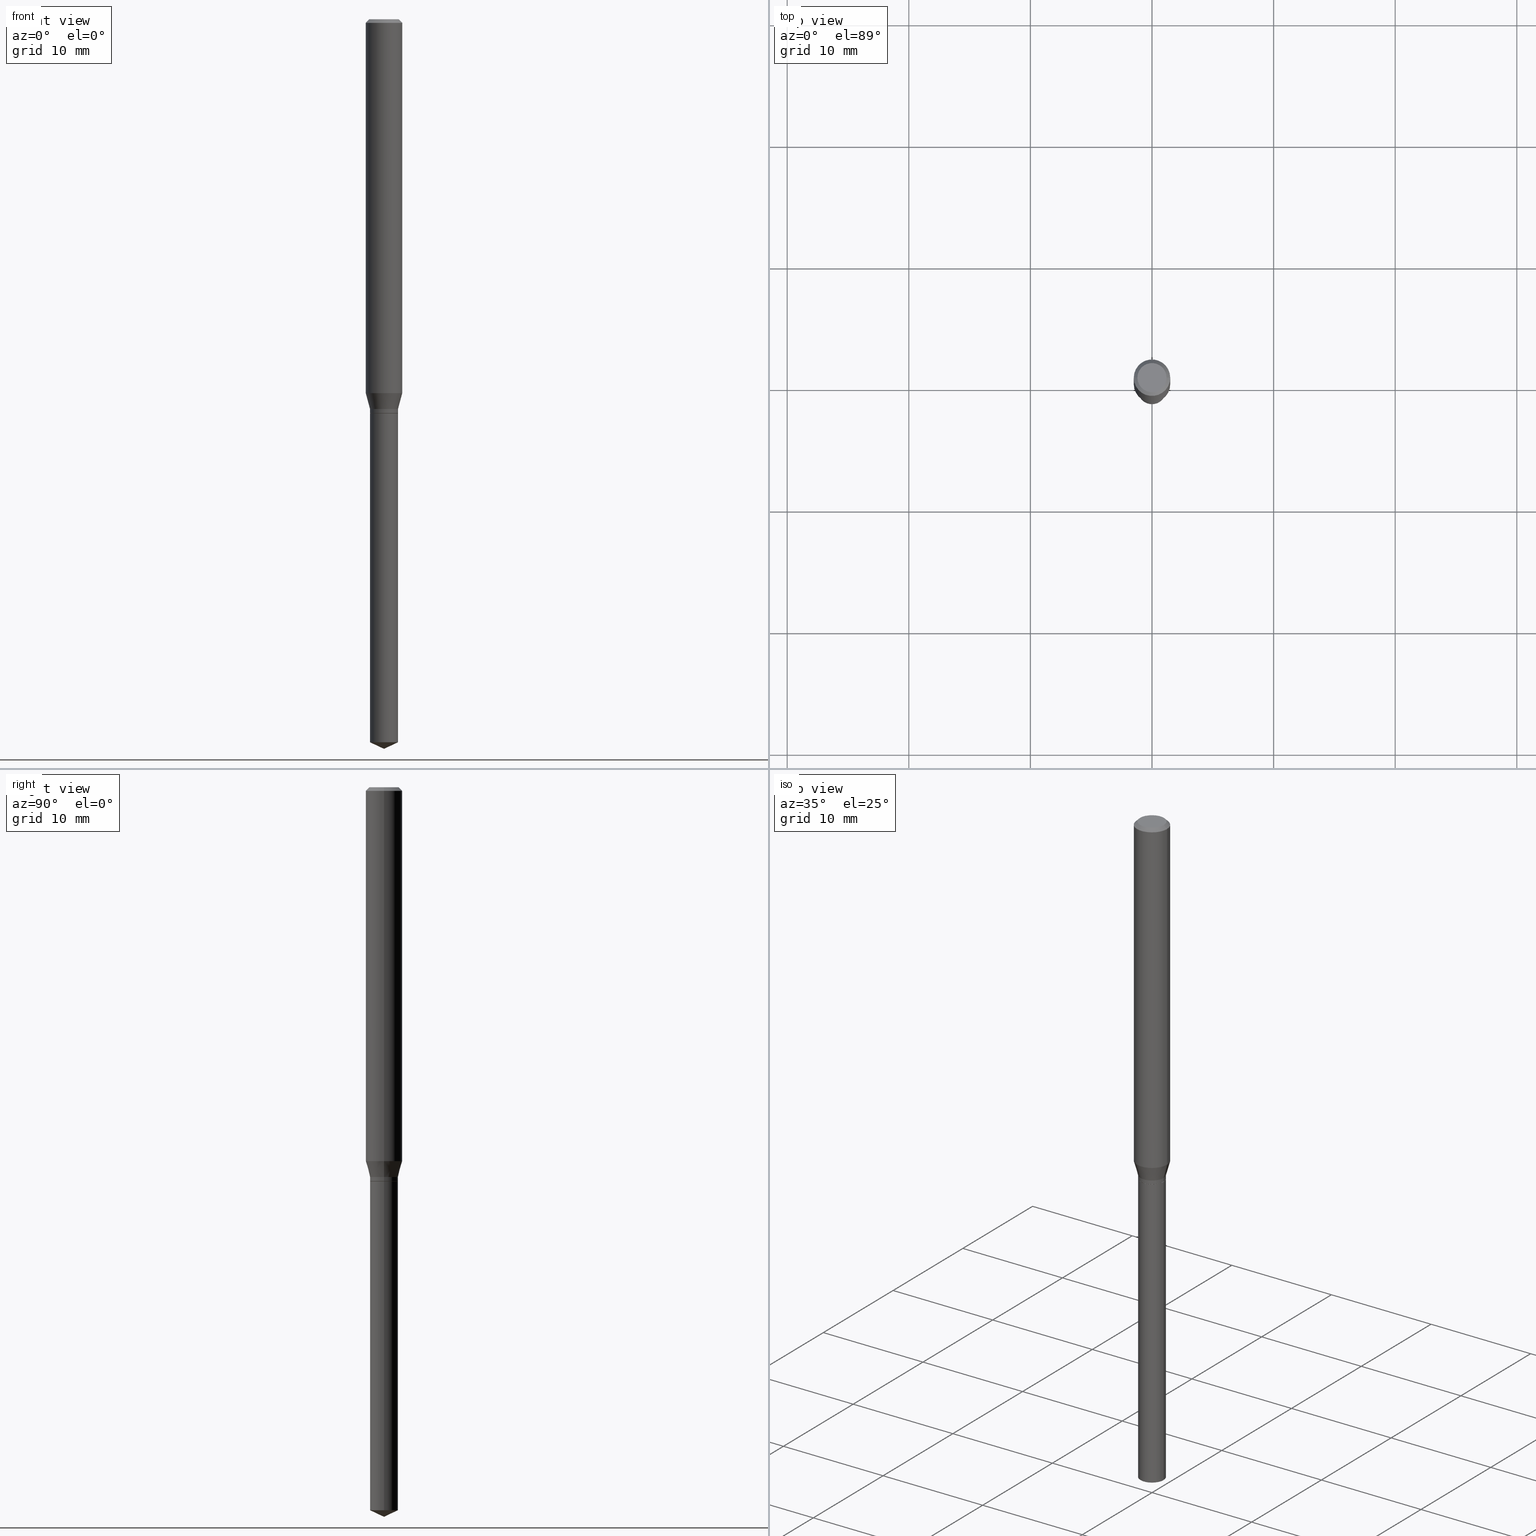
[diagram: canonical four-view strip — front | top / right | iso, engineering-drawing reading convention]
A machine part, canonical four-view strip (front | top / right | iso — engineering-drawing reading convention). The complete STEP part file that produces these views, byte-faithful:
ISO-10303-21;
HEADER;
FILE_DESCRIPTION (( 'STEP AP203' ),
    '1' );
FILE_NAME ('07637.STEP',
    '2024-04-24T00:10:10',
    ( '' ),
    ( '' ),
    'SwSTEP 2.0',
    'SolidWorks 2023',
    '' );
FILE_SCHEMA (( 'CONFIG_CONTROL_DESIGN' ));
ENDSEC;

DATA;
#1 = EDGE_CURVE ( 'NONE', #240, #176, #251, .T. ) ;
#2 = CARTESIAN_POINT ( 'NONE',  ( 0.04530000000000002774, -4.768316064458084174E-15, -1.275100000000000344 ) ) ;
#3 = EDGE_LOOP ( 'NONE', ( #279, #432 ) ) ;
#4 = AXIS2_PLACEMENT_3D ( 'NONE', #156, #276, #345 ) ;
#5 = AXIS2_PLACEMENT_3D ( 'NONE', #343, #90, #234 ) ;
#6 = FACE_OUTER_BOUND ( 'NONE', #393, .T. ) ;
#7 = EDGE_CURVE ( 'NONE', #421, #142, #77, .T. ) ;
#8 = CARTESIAN_POINT ( 'NONE',  ( 3.086181633405641816E-29, -4.406249449620048557E-15, -1.261999999999999789 ) ) ;
#9 = ORIENTED_EDGE ( 'NONE', *, *, #326, .F. ) ;
#10 = DIRECTION ( 'NONE',  ( -2.445468806185136597E-29, 3.491481338843145583E-15, 1.000000000000000000 ) ) ;
#11 = ORIENTED_EDGE ( 'NONE', *, *, #94, .T. ) ;
#12 = DIRECTION ( 'NONE',  ( 1.000000000000000000, -6.982962677686268288E-15, 0.000000000000000000 ) ) ;
#13 = EDGE_LOOP ( 'NONE', ( #197, #313, #45, #49 ) ) ;
#14 = CARTESIAN_POINT ( 'NONE',  ( 3.119440009169759514E-29, -4.453733595828316609E-15, -1.275599999999999845 ) ) ;
#15 = DIRECTION ( 'NONE',  ( -2.445468806185136597E-29, 3.491481338843145583E-15, 1.000000000000000000 ) ) ;
#16 = CARTESIAN_POINT ( 'NONE',  ( 3.086181633405641816E-29, -4.406249449620048557E-15, -1.261999999999999789 ) ) ;
#17 = ORIENTED_EDGE ( 'NONE', *, *, #68, .T. ) ;
#18 = AXIS2_PLACEMENT_3D ( 'NONE', #28, #450, #115 ) ;
#19 = AXIS2_PLACEMENT_3D ( 'NONE', #339, #92, #242 ) ;
#20 = DIRECTION ( 'NONE',  ( -2.445468806185136597E-29, 3.491481338843145583E-15, 1.000000000000000000 ) ) ;
#21 = ORIENTED_EDGE ( 'NONE', *, *, #332, .T. ) ;
#22 = CC_DESIGN_PERSON_AND_ORGANIZATION_ASSIGNMENT ( #414, #442, ( #307 ) ) ;
#23 = ORIENTED_EDGE ( 'NONE', *, *, #179, .F. ) ;
#24 = DIRECTION ( 'NONE',  ( -2.445468806185136597E-29, 3.491481338843145583E-15, 1.000000000000000000 ) ) ;
#25 = VECTOR ( 'NONE', #225, 39.37007874015748854 ) ;
#26 = LINE ( 'NONE', #265, #375 ) ;
#27 = LOCAL_TIME ( 20, 10, 10.00000000000000000, #153 ) ;
#28 = CARTESIAN_POINT ( 'NONE',  ( 3.118217274766668394E-29, -4.451987855158895895E-15, -1.275100000000000344 ) ) ;
#29 = DATE_TIME_ROLE ( 'creation_date' ) ;
#30 = ADVANCED_FACE ( 'NONE', ( #54 ), #205, .T. ) ;
#31 = DIRECTION ( 'NONE',  ( -2.445468806185136597E-29, 3.491481338843145583E-15, 1.000000000000000000 ) ) ;
#32 = APPLICATION_PROTOCOL_DEFINITION ( 'international standard', 'config_control_design', 1994, #80 ) ;
#33 = DIRECTION ( 'NONE',  ( -2.445468806185136877E-29, 3.491481338843145188E-15, 1.000000000000000000 ) ) ;
#34 = AXIS2_PLACEMENT_3D ( 'NONE', #8, #10, #201 ) ;
#35 = DIRECTION ( 'NONE',  ( -2.445468806185136597E-29, 3.491481338843145583E-15, 1.000000000000000000 ) ) ;
#36 = ADVANCED_FACE ( 'NONE', ( #247 ), #180, .T. ) ;
#37 = CALENDAR_DATE ( 2024, 23, 4 ) ;
#38 = LINE ( 'NONE', #157, #439 ) ;
#39 = DIRECTION ( 'NONE',  ( -1.000000000000000000, 6.982962677686265922E-15, -4.876176775795935793E-29 ) ) ;
#40 = EDGE_LOOP ( 'NONE', ( #428, #162, #315, #169 ) ) ;
#41 = AXIS2_PLACEMENT_3D ( 'NONE', #355, #15, #104 ) ;
#42 = CIRCLE ( 'NONE', #423, 0.04530000000000002081 ) ;
#43 = ADVANCED_FACE ( 'NONE', ( #100 ), #64, .T. ) ;
#44 = DIRECTION ( 'NONE',  ( 1.000000000000000000, -6.982962677686271444E-15, 0.000000000000000000 ) ) ;
#45 = ORIENTED_EDGE ( 'NONE', *, *, #208, .T. ) ;
#46 = PLANE ( 'NONE',  #342 ) ;
#47 = VERTEX_POINT ( 'NONE', #58 ) ;
#48 = CYLINDRICAL_SURFACE ( 'NONE', #194, 0.04529999999999999999 ) ;
#49 = ORIENTED_EDGE ( 'NONE', *, *, #337, .F. ) ;
#50 = AXIS2_PLACEMENT_3D ( 'NONE', #130, #383, #238 ) ;
#51 = CC_DESIGN_APPROVAL ( #75, ( #98 ) ) ;
#52 = FACE_OUTER_BOUND ( 'NONE', #465, .T. ) ;
#53 = CC_DESIGN_PERSON_AND_ORGANIZATION_ASSIGNMENT ( #334, #484, ( #319 ) ) ;
#54 = FACE_OUTER_BOUND ( 'NONE', #13, .T. ) ;
#55 = PLANE ( 'NONE',  #112 ) ;
#56 = ORIENTED_EDGE ( 'NONE', *, *, #160, .T. ) ;
#57 = DIRECTION ( 'NONE',  ( -0.7071067811865453523, 2.468850131082234184E-15, -0.7071067811865496822 ) ) ;
#58 = CARTESIAN_POINT ( 'NONE',  ( 0.04530000000000002081, -4.722577658919236837E-15, -1.261999999999999789 ) ) ;
#59 = EDGE_CURVE ( 'NONE', #142, #257, #210, .T. ) ;
#60 = VERTEX_POINT ( 'NONE', #66 ) ;
#61 = ORIENTED_EDGE ( 'NONE', *, *, #59, .F. ) ;
#62 = CARTESIAN_POINT ( 'NONE',  ( 2.888098660104663766E-31, -4.123439461173779647E-17, -0.01181000000000007044 ) ) ;
#63 = APPROVAL_DATE_TIME ( #404, #75 ) ;
#64 = CONICAL_SURFACE ( 'NONE', #341, 84.42940631927322670, 1.134464013796310899 ) ;
#65 = AXIS2_PLACEMENT_3D ( 'NONE', #178, #430, #468 ) ;
#66 = CARTESIAN_POINT ( 'NONE',  ( 5.776686413970529753E-29, -8.247577218615279626E-15, -2.362200000000000077 ) ) ;
#67 = LOCAL_TIME ( 20, 10, 10.00000000000000000, #331 ) ;
#68 = EDGE_CURVE ( 'NONE', #142, #421, #290, .T. ) ;
#69 =( NAMED_UNIT ( * ) PLANE_ANGLE_UNIT ( ) SI_UNIT ( $, .RADIAN. ) );
#70 = MANIFOLD_SOLID_BREP ( 'Body-Move/Copy2[2]', #275 ) ;
#71 = DIRECTION ( 'NONE',  ( 1.000000000000000000, -6.982962677686266711E-15, 4.876185090822587894E-29 ) ) ;
#72 = COORDINATED_UNIVERSAL_TIME_OFFSET ( 5, 0, .BEHIND. ) ;
#73 = DIRECTION ( 'NONE',  ( 0.7071067811865453523, -7.319954787623248157E-15, -0.7071067811865496822 ) ) ;
#74 = PERSON_AND_ORGANIZATION_ROLE ( 'design_owner' ) ;
#75 = APPROVAL ( #259, 'UNSPECIFIED' ) ;
#76 = CARTESIAN_POINT ( 'NONE',  ( 2.888098660104663766E-31, -4.123439461173779647E-17, -0.01181000000000007044 ) ) ;
#77 = CIRCLE ( 'NONE', #349, 0.04529999999999999999 ) ;
#78 = CARTESIAN_POINT ( 'NONE',  ( 0.000000000000000000, 0.000000000000000000, 0.000000000000000000 ) ) ;
#79 = CARTESIAN_POINT ( 'NONE',  ( 3.086181633405641816E-29, -4.406249449620048557E-15, -1.261999999999999789 ) ) ;
#80 = APPLICATION_CONTEXT ( 'configuration controlled 3d designs of mechanical parts and assemblies' ) ;
#81 = EDGE_LOOP ( 'NONE', ( #213, #389, #477, #475 ) ) ;
#82 = DIRECTION ( 'NONE',  ( -2.445468806185136877E-29, 3.491481338843145188E-15, 1.000000000000000000 ) ) ;
#83 = ADVANCED_FACE ( 'NONE', ( #445 ), #111, .T. ) ;
#84 = EDGE_LOOP ( 'NONE', ( #459, #11, #282, #177 ) ) ;
#85 = CARTESIAN_POINT ( 'NONE',  ( 0.05905000000000007465, -4.123439461173745750E-16, 2.879382386107504074E-30 ) ) ;
#86 = ORIENTED_EDGE ( 'NONE', *, *, #132, .T. ) ;
#87 = AXIS2_PLACEMENT_3D ( 'NONE', #76, #409, #483 ) ;
#88 = CIRCLE ( 'NONE', #431, 0.04529999999999999999 ) ;
#89 = DESIGN_CONTEXT ( 'detailed design', #80, 'design' ) ;
#90 = DIRECTION ( 'NONE',  ( -2.445468806185136597E-29, 3.491481338843145583E-15, 1.000000000000000000 ) ) ;
#91 = EDGE_LOOP ( 'NONE', ( #135, #364, #202, #236 ) ) ;
#92 = DIRECTION ( 'NONE',  ( -2.445468806185136597E-29, 3.491481338843145583E-15, 1.000000000000000000 ) ) ;
#93 = ORIENTED_EDGE ( 'NONE', *, *, #440, .F. ) ;
#94 = EDGE_CURVE ( 'NONE', #140, #287, #148, .T. ) ;
#95 = CARTESIAN_POINT ( 'NONE',  ( -0.04530000000000000693, -7.851948226072618556E-15, -2.341076263085578368 ) ) ;
#96 = CARTESIAN_POINT ( 'NONE',  ( 5.725028974276250871E-29, -8.173824085371943200E-15, -2.341076263085578368 ) ) ;
#97 = AXIS2_PLACEMENT_3D ( 'NONE', #293, #443, #109 ) ;
#98 = SECURITY_CLASSIFICATION ( '', '', #231 ) ;
#99 =( CONVERSION_BASED_UNIT ( 'INCH', #317 ) LENGTH_UNIT ( ) NAMED_UNIT ( #226 ) );
#100 = FACE_OUTER_BOUND ( 'NONE', #473, .T. ) ;
#101 = CYLINDRICAL_SURFACE ( 'NONE', #220, 0.05905000000000007465 ) ;
#102 = EDGE_LOOP ( 'NONE', ( #9, #386 ) ) ;
#103 = EDGE_CURVE ( 'NONE', #357, #419, #173, .T. ) ;
#104 = DIRECTION ( 'NONE',  ( 1.000000000000000000, -6.982962677686259611E-15, 0.000000000000000000 ) ) ;
#105 = CIRCLE ( 'NONE', #50, 0.04530000000000002774 ) ;
#106 = ORIENTED_EDGE ( 'NONE', *, *, #1, .T. ) ;
#107 = CARTESIAN_POINT ( 'NONE',  ( 8.265746106709734507E-48, -1.180129479067563789E-33, -3.380025165646692144E-19 ) ) ;
#108 = PERSON ( 'UNSPECIFIED', 'UNSPECIFIED', 'UNSPECIFIED', ('UNSPECIFIED'), ('UNSPECIFIED'), ('UNSPECIFIED') ) ;
#109 = DIRECTION ( 'NONE',  ( -1.000000000000000000, 6.982962677686265922E-15, -4.876176775795935793E-29 ) ) ;
#110 = APPROVAL_ROLE ( '' ) ;
#111 = CONICAL_SURFACE ( 'NONE', #192, 0.05904999999999999832, 0.7853981633974452814 ) ;
#112 = AXIS2_PLACEMENT_3D ( 'NONE', #14, #359, #170 ) ;
#113 = CARTESIAN_POINT ( 'NONE',  ( 5.776686413970529753E-29, -8.247577218615279626E-15, -2.362200000000000077 ) ) ;
#114 = APPROVAL_DATE_TIME ( #116, #117 ) ;
#115 = DIRECTION ( 'NONE',  ( 1.000000000000000000, -6.982962677686266711E-15, 0.000000000000000000 ) ) ;
#116 = DATE_AND_TIME ( #120, #67 ) ;
#117 = APPROVAL ( #453, 'UNSPECIFIED' ) ;
#118 = CARTESIAN_POINT ( 'NONE',  ( 3.119440009169759514E-29, -4.453733595828316609E-15, -1.275599999999999845 ) ) ;
#119 = APPLICATION_CONTEXT ( 'configuration controlled 3d designs of mechanical parts and assemblies' ) ;
#120 = CALENDAR_DATE ( 2024, 23, 4 ) ;
#121 = DIRECTION ( 'NONE',  ( -2.445468806185136597E-29, 3.491481338843145583E-15, 1.000000000000000000 ) ) ;
#122 = CIRCLE ( 'NONE', #4, 0.04529999999999999999 ) ;
#123 = AXIS2_PLACEMENT_3D ( 'NONE', #163, #454, #416 ) ;
#124 = CARTESIAN_POINT ( 'NONE',  ( 3.119440009169759514E-29, -4.453733595828316609E-15, -1.275599999999999845 ) ) ;
#125 = ORIENTED_EDGE ( 'NONE', *, *, #288, .T. ) ;
#126 = CARTESIAN_POINT ( 'NONE',  ( 0.000000000000000000, 0.000000000000000000, 0.000000000000000000 ) ) ;
#127 = EDGE_CURVE ( 'NONE', #140, #401, #306, .T. ) ;
#128 = DIRECTION ( 'NONE',  ( 1.000000000000000000, -6.982962677686271444E-15, 0.000000000000000000 ) ) ;
#129 = VERTEX_POINT ( 'NONE', #300 ) ;
#130 = CARTESIAN_POINT ( 'NONE',  ( 3.118217274766668394E-29, -4.451987855158895895E-15, -1.275100000000000344 ) ) ;
#131 = VERTEX_POINT ( 'NONE', #189 ) ;
#132 = EDGE_CURVE ( 'NONE', #60, #421, #413, .T. ) ;
#133 = DIRECTION ( 'NONE',  ( -2.445468806185136597E-29, 3.491481338843145583E-15, 1.000000000000000000 ) ) ;
#134 = CARTESIAN_POINT ( 'NONE',  ( 0.000000000000000000, 0.000000000000000000, 0.000000000000000000 ) ) ;
#135 = ORIENTED_EDGE ( 'NONE', *, *, #326, .T. ) ;
#136 = CLOSED_SHELL ( 'NONE', ( #274, #43, #222, #352, #241 ) ) ;
#137 = LOCAL_TIME ( 20, 10, 10.00000000000000000, #72 ) ;
#138 = CARTESIAN_POINT ( 'NONE',  ( 2.888098660104663766E-31, -4.123439461173779647E-17, -0.01181000000000007044 ) ) ;
#139 = EDGE_CURVE ( 'NONE', #289, #363, #447, .T. ) ;
#140 = VERTEX_POINT ( 'NONE', #374 ) ;
#141 = ORIENTED_EDGE ( 'NONE', *, *, #127, .T. ) ;
#142 = VERTEX_POINT ( 'NONE', #184 ) ;
#143 = AXIS2_PLACEMENT_3D ( 'NONE', #336, #488, #71 ) ;
#144 = VECTOR ( 'NONE', #191, 39.37007874015748143 ) ;
#145 = EDGE_LOOP ( 'NONE', ( #17, #346, #93, #61 ) ) ;
#146 = EDGE_CURVE ( 'NONE', #167, #240, #367, .T. ) ;
#147 = CARTESIAN_POINT ( 'NONE',  ( -0.05905000000000015098, -3.807506160087890266E-15, -1.210684301395927420 ) ) ;
#148 = LINE ( 'NONE', #365, #150 ) ;
#149 = APPROVAL_ROLE ( '' ) ;
#150 = VECTOR ( 'NONE', #73, 39.37007874015748143 ) ;
#151 = CARTESIAN_POINT ( 'NONE',  ( 2.960690693201784593E-29, -4.227081645554230547E-15, -1.210684301395927420 ) ) ;
#152 = EDGE_CURVE ( 'NONE', #131, #240, #376, .T. ) ;
#153 = COORDINATED_UNIVERSAL_TIME_OFFSET ( 5, 0, .BEHIND. ) ;
#154 = DIRECTION ( 'NONE',  ( -0.7071067811868312347, 7.493145998871379679E-15, 0.7071067811862637997 ) ) ;
#155 = APPLICATION_PROTOCOL_DEFINITION ( 'international standard', 'config_control_design', 1994, #119 ) ;
#156 = CARTESIAN_POINT ( 'NONE',  ( 3.119440009169759514E-29, -4.453733595828316609E-15, -1.275599999999999845 ) ) ;
#157 = CARTESIAN_POINT ( 'NONE',  ( -0.04529999999999999999, -4.131857736528991176E-15, -1.275599999999999845 ) ) ;
#158 = CC_DESIGN_SECURITY_CLASSIFICATION ( #98, ( #307 ) ) ;
#159 = EDGE_LOOP ( 'NONE', ( #23, #400, #125, #340 ) ) ;
#160 = EDGE_CURVE ( 'NONE', #401, #140, #422, .T. ) ;
#161 = CARTESIAN_POINT ( 'NONE',  ( -0.04530000000000002774, -4.107242793090146792E-15, -1.275100000000000344 ) ) ;
#162 = ORIENTED_EDGE ( 'NONE', *, *, #418, .T. ) ;
#163 = CARTESIAN_POINT ( 'NONE',  ( 3.119440009169759514E-29, -4.453733595828316609E-15, -1.275599999999999845 ) ) ;
#164 = ORIENTED_EDGE ( 'NONE', *, *, #146, .F. ) ;
#165 = CARTESIAN_POINT ( 'NONE',  ( 2.960690693201784593E-29, -4.227081645554230547E-15, -1.210684301395927420 ) ) ;
#166 = CC_DESIGN_DATE_AND_TIME_ASSIGNMENT ( #190, #294, ( #98 ) ) ;
#167 = VERTEX_POINT ( 'NONE', #403 ) ;
#168 = VECTOR ( 'NONE', #223, 39.37007874015748143 ) ;
#169 = ORIENTED_EDGE ( 'NONE', *, *, #208, .F. ) ;
#170 = DIRECTION ( 'NONE',  ( 1.000000000000000000, -6.982962677686265922E-15, 4.876176775795935793E-29 ) ) ;
#171 = ORIENTED_EDGE ( 'NONE', *, *, #358, .T. ) ;
#172 = DIRECTION ( 'NONE',  ( 1.000000000000000000, -6.982962677686271444E-15, 0.000000000000000000 ) ) ;
#173 = CIRCLE ( 'NONE', #382, 0.04479999999999999954 ) ;
#174 = ORGANIZATION ( 'UNSPECIFIED', 'UNSPECIFIED', '' ) ;
#175 = DIRECTION ( 'NONE',  ( -2.445468806185136877E-29, 3.491481338843145188E-15, 1.000000000000000000 ) ) ;
#176 = VERTEX_POINT ( 'NONE', #485 ) ;
#177 = ORIENTED_EDGE ( 'NONE', *, *, #470, .F. ) ;
#178 = CARTESIAN_POINT ( 'NONE',  ( 0.000000000000000000, 0.000000000000000000, 0.000000000000000000 ) ) ;
#179 = EDGE_CURVE ( 'NONE', #357, #289, #26, .T. ) ;
#180 = CONICAL_SURFACE ( 'NONE', #41, 0.04479999999999999954, 0.7853981633978495136 ) ;
#181 = AXIS2_PLACEMENT_3D ( 'NONE', #138, #248, #285 ) ;
#182 = FACE_OUTER_BOUND ( 'NONE', #462, .T. ) ;
#183 = APPROVAL_ROLE ( '' ) ;
#184 = CARTESIAN_POINT ( 'NONE',  ( 0.04530000000000000693, -8.490152294671132269E-15, -2.341076263085578368 ) ) ;
#185 = EDGE_CURVE ( 'NONE', #47, #167, #264, .T. ) ;
#186 = DIRECTION ( 'NONE',  ( 2.445468806185136597E-29, -3.491481338843145583E-15, -1.000000000000000000 ) ) ;
#187 = DIRECTION ( 'NONE',  ( 1.000000000000000000, -6.982962677686271444E-15, 0.000000000000000000 ) ) ;
#188 = PERSON_AND_ORGANIZATION ( #108, #174 ) ;
#189 = CARTESIAN_POINT ( 'NONE',  ( -0.04530000000000002081, -4.107242793090146792E-15, -1.261999999999999789 ) ) ;
#190 = DATE_AND_TIME ( #37, #239 ) ;
#191 = DIRECTION ( 'NONE',  ( -2.445468806185136877E-29, 3.491481338843145188E-15, 1.000000000000000000 ) ) ;
#192 = AXIS2_PLACEMENT_3D ( 'NONE', #62, #186, #217 ) ;
#193 = FACE_OUTER_BOUND ( 'NONE', #40, .T. ) ;
#194 = AXIS2_PLACEMENT_3D ( 'NONE', #278, #121, #44 ) ;
#195 = ORIENTED_EDGE ( 'NONE', *, *, #152, .T. ) ;
#196 = LINE ( 'NONE', #85, #144 ) ;
#197 = ORIENTED_EDGE ( 'NONE', *, *, #418, .F. ) ;
#198 = CC_DESIGN_DATE_AND_TIME_ASSIGNMENT ( #303, #29, ( #319 ) ) ;
#199 = DIRECTION ( 'NONE',  ( 2.445468806185136597E-29, -3.491481338843145583E-15, -1.000000000000000000 ) ) ;
#200 = ORIENTED_EDGE ( 'NONE', *, *, #396, .T. ) ;
#201 = DIRECTION ( 'NONE',  ( 1.000000000000000000, -6.982962677686268288E-15, 0.000000000000000000 ) ) ;
#202 = ORIENTED_EDGE ( 'NONE', *, *, #304, .F. ) ;
#203 = CIRCLE ( 'NONE', #181, 0.05904999999999999832 ) ;
#204 = LINE ( 'NONE', #356, #471 ) ;
#205 = CYLINDRICAL_SURFACE ( 'NONE', #65, 0.04530000000000002774 ) ;
#206 = LINE ( 'NONE', #467, #392 ) ;
#207 = DIRECTION ( 'NONE',  ( -2.445468806185136597E-29, 3.491481338843145583E-15, 1.000000000000000000 ) ) ;
#208 = EDGE_CURVE ( 'NONE', #363, #47, #302, .T. ) ;
#209 = FACE_OUTER_BOUND ( 'NONE', #102, .T. ) ;
#210 = LINE ( 'NONE', #361, #406 ) ;
#211 = VECTOR ( 'NONE', #258, 39.37007874015748143 ) ;
#212 = APPROVAL_PERSON_ORGANIZATION ( #410, #233, #183 ) ;
#213 = ORIENTED_EDGE ( 'NONE', *, *, #94, .F. ) ;
#214 = EDGE_CURVE ( 'NONE', #287, #176, #298, .T. ) ;
#215 = ORIENTED_EDGE ( 'NONE', *, *, #434, .F. ) ;
#216 = PRODUCT_RELATED_PRODUCT_CATEGORY ( 'detail', '', ( #256 ) ) ;
#217 = DIRECTION ( 'NONE',  ( -1.000000000000000000, 6.982962677686266711E-15, 0.000000000000000000 ) ) ;
#218 = SHAPE_DEFINITION_REPRESENTATION ( #230, #309 ) ;
#219 = CONICAL_SURFACE ( 'NONE', #34, 0.04530000000000002081, 0.2617993877991497964 ) ;
#220 = AXIS2_PLACEMENT_3D ( 'NONE', #134, #250, #320 ) ;
#221 = CARTESIAN_POINT ( 'NONE',  ( 2.888098660104663766E-31, -4.123439461173779647E-17, -0.01181000000000007044 ) ) ;
#222 = ADVANCED_FACE ( 'NONE', ( #182 ), #390, .T. ) ;
#223 = DIRECTION ( 'NONE',  ( 0.2588190451025211281, 1.565188264969623940E-15, 0.9659258262890682012 ) ) ;
#224 = COORDINATED_UNIVERSAL_TIME_OFFSET ( 5, 0, .BEHIND. ) ;
#225 = DIRECTION ( 'NONE',  ( -0.9063077870366484934, 7.915267918739014631E-15, 0.4226182617407023834 ) ) ;
#226 = DIMENSIONAL_EXPONENTS ( 1.000000000000000000, 0.000000000000000000, 0.000000000000000000, 0.000000000000000000, 0.000000000000000000, 0.000000000000000000, 0.000000000000000000 ) ;
#227 = DIRECTION ( 'NONE',  ( 0.000000000000000000, 0.000000000000000000, 1.000000000000000000 ) ) ;
#228 = CIRCLE ( 'NONE', #463, 0.04530000000000002081 ) ;
#229 = CARTESIAN_POINT ( 'NONE',  ( -9.050161304213721862E-28, 1.292123180114298356E-13, 37.00787874015748002 ) ) ;
#230 = PRODUCT_DEFINITION_SHAPE ( 'NONE', 'NONE',  #319 ) ;
#231 = SECURITY_CLASSIFICATION_LEVEL ( 'unclassified' ) ;
#232 = DIRECTION ( 'NONE',  ( 0.9063077870366484934, -4.853149677051359068E-15, 0.4226182617407023834 ) ) ;
#233 = APPROVAL ( #377, 'UNSPECIFIED' ) ;
#234 = DIRECTION ( 'NONE',  ( 1.000000000000000000, -6.982962677686268288E-15, 0.000000000000000000 ) ) ;
#235 = MANIFOLD_SOLID_BREP ( 'Body-Move/Copy2[1]', #136 ) ;
#236 = ORIENTED_EDGE ( 'NONE', *, *, #288, .F. ) ;
#237 = AXIS2_PLACEMENT_3D ( 'NONE', #151, #333, #441 ) ;
#238 = DIRECTION ( 'NONE',  ( 1.000000000000000000, -6.982962677686266711E-15, 0.000000000000000000 ) ) ;
#239 = LOCAL_TIME ( 20, 10, 10.00000000000000000, #224 ) ;
#240 = VERTEX_POINT ( 'NONE', #147 ) ;
#241 = ADVANCED_FACE ( 'NONE', ( #296 ), #291, .F. ) ;
#242 = DIRECTION ( 'NONE',  ( 1.000000000000000000, -6.982962677686259611E-15, 0.000000000000000000 ) ) ;
#243 = EDGE_LOOP ( 'NONE', ( #353, #318, #380, #310 ) ) ;
#244 = LINE ( 'NONE', #388, #415 ) ;
#245 = ORIENTED_EDGE ( 'NONE', *, *, #1, .F. ) ;
#246 = FACE_OUTER_BOUND ( 'NONE', #435, .T. ) ;
#247 = FACE_OUTER_BOUND ( 'NONE', #91, .T. ) ;
#248 = DIRECTION ( 'NONE',  ( -2.445468806185136597E-29, 3.491481338843145583E-15, 1.000000000000000000 ) ) ;
#249 = DIRECTION ( 'NONE',  ( -2.445468806185136877E-29, 3.491481338843145188E-15, 1.000000000000000000 ) ) ;
#250 = DIRECTION ( 'NONE',  ( -2.445468806185136597E-29, 3.491481338843145583E-15, 1.000000000000000000 ) ) ;
#251 = LINE ( 'NONE', #286, #283 ) ;
#252 = EDGE_LOOP ( 'NONE', ( #321, #344, #438, #329 ) ) ;
#253 = VECTOR ( 'NONE', #271, 39.37007874015748143 ) ;
#254 = APPROVAL_PERSON_ORGANIZATION ( #479, #75, #110 ) ;
#255 = CC_DESIGN_PERSON_AND_ORGANIZATION_ASSIGNMENT ( #266, #481, ( #307 ) ) ;
#256 = PRODUCT ( '07637', '07637', '', ( #292 ) ) ;
#257 = VERTEX_POINT ( 'NONE', #260 ) ;
#258 = DIRECTION ( 'NONE',  ( -0.2588190451025211281, 5.211531920934548675E-15, 0.9659258262890682012 ) ) ;
#259 = APPROVAL_STATUS ( 'not_yet_approved' ) ;
#260 = CARTESIAN_POINT ( 'NONE',  ( 0.04529999999999999999, -4.770061805127504889E-15, -1.275599999999999845 ) ) ;
#261 = CONICAL_SURFACE ( 'NONE', #5, 0.04530000000000002081, 0.2617993877991497964 ) ;
#262 = DIRECTION ( 'NONE',  ( -2.445468806185136597E-29, 3.491481338843145583E-15, 1.000000000000000000 ) ) ;
#263 =( NAMED_UNIT ( * ) SI_UNIT ( $, .STERADIAN. ) SOLID_ANGLE_UNIT ( ) );
#264 = LINE ( 'NONE', #412, #168 ) ;
#265 = CARTESIAN_POINT ( 'NONE',  ( -0.04479999999999999954, -4.135410450207791286E-15, -1.275599999999999845 ) ) ;
#266 = PERSON_AND_ORGANIZATION ( #108, #174 ) ;
#267 = ADVANCED_FACE ( 'NONE', ( #405 ), #486, .T. ) ;
#268 = AXIS2_PLACEMENT_3D ( 'NONE', #124, #308, #128 ) ;
#269 = AXIS2_PLACEMENT_3D ( 'NONE', #394, #391, #397 ) ;
#270 = FACE_OUTER_BOUND ( 'NONE', #327, .T. ) ;
#271 = DIRECTION ( 'NONE',  ( 0.7071067811868312347, -2.468850131085228700E-15, 0.7071067811862637997 ) ) ;
#272 = ORIENTED_EDGE ( 'NONE', *, *, #185, .F. ) ;
#273 = LINE ( 'NONE', #350, #253 ) ;
#274 = ADVANCED_FACE ( 'NONE', ( #458 ), #456, .T. ) ;
#275 = CLOSED_SHELL ( 'NONE', ( #36, #83, #461, #311, #411, #30, #281, #446, #267, #381, #476, #387 ) ) ;
#276 = DIRECTION ( 'NONE',  ( -2.445468806185136597E-29, 3.491481338843145583E-15, 1.000000000000000000 ) ) ;
#277 = CONICAL_SURFACE ( 'NONE', #19, 0.04479999999999999954, 0.7853981633978495136 ) ;
#278 = CARTESIAN_POINT ( 'NONE',  ( 3.119440009169759514E-29, -4.453733595828316609E-15, -1.275599999999999845 ) ) ;
#279 = ORIENTED_EDGE ( 'NONE', *, *, #440, .T. ) ;
#280 = DIRECTION ( 'NONE',  ( 1.000000000000000000, -6.982962677686271444E-15, 0.000000000000000000 ) ) ;
#281 = ADVANCED_FACE ( 'NONE', ( #424 ), #219, .T. ) ;
#282 = ORIENTED_EDGE ( 'NONE', *, *, #214, .T. ) ;
#283 = VECTOR ( 'NONE', #249, 39.37007874015748143 ) ;
#284 = AXIS2_PLACEMENT_3D ( 'NONE', #78, #227, #489 ) ;
#285 = DIRECTION ( 'NONE',  ( 1.000000000000000000, -6.982962677686266711E-15, 0.000000000000000000 ) ) ;
#286 = CARTESIAN_POINT ( 'NONE',  ( -0.05905000000000007465, 4.195754854663396902E-16, -2.904631170795525395E-30 ) ) ;
#287 = VERTEX_POINT ( 'NONE', #305 ) ;
#288 = EDGE_CURVE ( 'NONE', #419, #363, #273, .T. ) ;
#289 = VERTEX_POINT ( 'NONE', #161 ) ;
#290 = CIRCLE ( 'NONE', #323, 0.04529999999999999999 ) ;
#291 = PLANE ( 'NONE',  #97 ) ;
#292 = MECHANICAL_CONTEXT ( 'NONE', #119, 'mechanical' ) ;
#293 = CARTESIAN_POINT ( 'NONE',  ( 3.119440009169759514E-29, -4.453733595828316609E-15, -1.275599999999999845 ) ) ;
#294 = DATE_TIME_ROLE ( 'classification_date' ) ;
#295 = EDGE_CURVE ( 'NONE', #129, #257, #122, .T. ) ;
#296 = FACE_OUTER_BOUND ( 'NONE', #3, .T. ) ;
#297 = PERSON_AND_ORGANIZATION ( #108, #174 ) ;
#298 = CIRCLE ( 'NONE', #87, 0.05904999999999999832 ) ;
#299 = APPROVAL_PERSON_ORGANIZATION ( #451, #117, #149 ) ;
#300 = CARTESIAN_POINT ( 'NONE',  ( -0.04529999999999999999, -5.991902981300804471E-15, -1.275599999999999845 ) ) ;
#301 = APPROVAL_DATE_TIME ( #366, #233 ) ;
#302 = LINE ( 'NONE', #452, #437 ) ;
#303 = DATE_AND_TIME ( #444, #27 ) ;
#304 = EDGE_CURVE ( 'NONE', #363, #289, #105, .T. ) ;
#305 = CARTESIAN_POINT ( 'NONE',  ( 0.05904999999999999832, -4.535783407291118600E-16, -0.01181000000000007044 ) ) ;
#306 = CIRCLE ( 'NONE', #469, 0.04724000000000000421 ) ;
#307 = PRODUCT_DEFINITION_FORMATION_WITH_SPECIFIED_SOURCE ( 'ANY', '', #256, .NOT_KNOWN. ) ;
#308 = DIRECTION ( 'NONE',  ( -2.445468806185136597E-29, 3.491481338843145583E-15, 1.000000000000000000 ) ) ;
#309 = ADVANCED_BREP_SHAPE_REPRESENTATION ( '07637', ( #235, #70, #284 ), #362 ) ;
#310 = ORIENTED_EDGE ( 'NONE', *, *, #295, .F. ) ;
#311 = ADVANCED_FACE ( 'NONE', ( #270 ), #261, .T. ) ;
#312 = CYLINDRICAL_SURFACE ( 'NONE', #325, 0.04530000000000002774 ) ;
#313 = ORIENTED_EDGE ( 'NONE', *, *, #139, .T. ) ;
#314 = CARTESIAN_POINT ( 'NONE',  ( -0.04479999999999999954, -4.132761223033680874E-15, -1.275599999999999845 ) ) ;
#315 = ORIENTED_EDGE ( 'NONE', *, *, #482, .F. ) ;
#316 = DIRECTION ( 'NONE',  ( -2.445468806185136597E-29, 3.491481338843145583E-15, 1.000000000000000000 ) ) ;
#317 = LENGTH_MEASURE_WITH_UNIT ( LENGTH_MEASURE( 0.02539999999999999897 ), #322 );
#318 = ORIENTED_EDGE ( 'NONE', *, *, #7, .T. ) ;
#319 = PRODUCT_DEFINITION ( 'UNKNOWN', '', #307, #89 ) ;
#320 = DIRECTION ( 'NONE',  ( 1.000000000000000000, -6.982962677686266711E-15, 4.876176775795936353E-29 ) ) ;
#321 = ORIENTED_EDGE ( 'NONE', *, *, #152, .F. ) ;
#322 =( LENGTH_UNIT ( ) NAMED_UNIT ( * ) SI_UNIT ( $, .METRE. ) );
#323 = AXIS2_PLACEMENT_3D ( 'NONE', #330, #31, #187 ) ;
#324 = ORIENTED_EDGE ( 'NONE', *, *, #146, .T. ) ;
#325 = AXIS2_PLACEMENT_3D ( 'NONE', #126, #20, #429 ) ;
#326 = EDGE_CURVE ( 'NONE', #419, #357, #455, .T. ) ;
#327 = EDGE_LOOP ( 'NONE', ( #474, #195, #164, #272 ) ) ;
#328 = ORIENTED_EDGE ( 'NONE', *, *, #396, .F. ) ;
#329 = ORIENTED_EDGE ( 'NONE', *, *, #332, .F. ) ;
#330 = CARTESIAN_POINT ( 'NONE',  ( 5.725028974276250871E-29, -8.173824085371943200E-15, -2.341076263085578368 ) ) ;
#331 = COORDINATED_UNIVERSAL_TIME_OFFSET ( 5, 0, .BEHIND. ) ;
#332 = EDGE_CURVE ( 'NONE', #240, #167, #407, .T. ) ;
#333 = DIRECTION ( 'NONE',  ( -2.445468806185136597E-29, 3.491481338843145583E-15, 1.000000000000000000 ) ) ;
#334 = PERSON_AND_ORGANIZATION ( #108, #174 ) ;
#335 = CARTESIAN_POINT ( 'NONE',  ( -0.04530000000000002081, -4.084373590320723124E-15, -1.261999999999999789 ) ) ;
#336 = CARTESIAN_POINT ( 'NONE',  ( 8.265746106709734507E-48, -1.180129479067563789E-33, -3.380025165646692144E-19 ) ) ;
#337 = EDGE_CURVE ( 'NONE', #131, #47, #42, .T. ) ;
#338 = DIRECTION ( 'NONE',  ( 1.000000000000000000, -6.982962677686266711E-15, 4.876185090822587894E-29 ) ) ;
#339 = CARTESIAN_POINT ( 'NONE',  ( 3.119440009169759514E-29, -4.453733595828316609E-15, -1.275599999999999845 ) ) ;
#340 = ORIENTED_EDGE ( 'NONE', *, *, #139, .F. ) ;
#341 = AXIS2_PLACEMENT_3D ( 'NONE', #395, #207, #398 ) ;
#342 = AXIS2_PLACEMENT_3D ( 'NONE', #427, #460, #39 ) ;
#343 = CARTESIAN_POINT ( 'NONE',  ( 3.086181633405641816E-29, -4.406249449620048557E-15, -1.261999999999999789 ) ) ;
#344 = ORIENTED_EDGE ( 'NONE', *, *, #337, .T. ) ;
#345 = DIRECTION ( 'NONE',  ( 1.000000000000000000, -6.982962677686271444E-15, 0.000000000000000000 ) ) ;
#346 = ORIENTED_EDGE ( 'NONE', *, *, #402, .T. ) ;
#347 = DIRECTION ( 'NONE',  ( -1.000000000000000000, 6.982962677686266711E-15, 0.000000000000000000 ) ) ;
#348 = ORIENTED_EDGE ( 'NONE', *, *, #7, .F. ) ;
#349 = AXIS2_PLACEMENT_3D ( 'NONE', #96, #24, #172 ) ;
#350 = CARTESIAN_POINT ( 'NONE',  ( 0.04479999999999999954, -4.766570323788661093E-15, -1.275599999999999845 ) ) ;
#351 = AXIS2_PLACEMENT_3D ( 'NONE', #165, #316, #464 ) ;
#352 = ADVANCED_FACE ( 'NONE', ( #420 ), #48, .T. ) ;
#353 = ORIENTED_EDGE ( 'NONE', *, *, #402, .F. ) ;
#354 = CARTESIAN_POINT ( 'NONE',  ( 0.04479999999999999954, -4.766570323788661093E-15, -1.275599999999999845 ) ) ;
#355 = CARTESIAN_POINT ( 'NONE',  ( 3.119440009169759514E-29, -4.453733595828316609E-15, -1.275599999999999845 ) ) ;
#356 = CARTESIAN_POINT ( 'NONE',  ( -0.05904999999999999832, 3.711095515056362547E-16, -0.01181000000000007044 ) ) ;
#357 = VERTEX_POINT ( 'NONE', #314 ) ;
#358 = EDGE_CURVE ( 'NONE', #167, #287, #196, .T. ) ;
#359 = DIRECTION ( 'NONE',  ( -2.438088387897960049E-29, 3.491481338843145188E-15, 1.000000000000000000 ) ) ;
#360 = AXIS2_PLACEMENT_3D ( 'NONE', #229, #35, #490 ) ;
#361 = CARTESIAN_POINT ( 'NONE',  ( 0.04529999999999999999, -4.770061805127504889E-15, -1.275599999999999845 ) ) ;
#362 =( GEOMETRIC_REPRESENTATION_CONTEXT ( 3 ) GLOBAL_UNCERTAINTY_ASSIGNED_CONTEXT ( ( #368 ) ) GLOBAL_UNIT_ASSIGNED_CONTEXT ( ( #99, #69, #263 ) ) REPRESENTATION_CONTEXT ( 'NONE', 'WORKASPACE' ) );
#363 = VERTEX_POINT ( 'NONE', #2 ) ;
#364 = ORIENTED_EDGE ( 'NONE', *, *, #179, .T. ) ;
#365 = CARTESIAN_POINT ( 'NONE',  ( 0.05904999999999999832, -4.463468013801466955E-16, -0.01181000000000007044 ) ) ;
#366 = DATE_AND_TIME ( #487, #478 ) ;
#367 = CIRCLE ( 'NONE', #237, 0.05905000000000015098 ) ;
#368 = UNCERTAINTY_MEASURE_WITH_UNIT (LENGTH_MEASURE( 1.000000000000000082E-05 ), #99, 'distance_accuracy_value', 'NONE');
#369 = DIRECTION ( 'NONE',  ( -2.445468806185136877E-29, 3.491481338843145188E-15, 1.000000000000000000 ) ) ;
#370 = COORDINATED_UNIVERSAL_TIME_OFFSET ( 5, 0, .BEHIND. ) ;
#371 = DIRECTION ( 'NONE',  ( -2.445468806185136597E-29, 3.491481338843145583E-15, 1.000000000000000000 ) ) ;
#372 = CALENDAR_DATE ( 2024, 23, 4 ) ;
#373 = CC_DESIGN_PERSON_AND_ORGANIZATION_ASSIGNMENT ( #188, #74, ( #256 ) ) ;
#374 = CARTESIAN_POINT ( 'NONE',  ( 0.04724000000000000421, -3.852183633974369345E-16, -3.380025165621689721E-19 ) ) ;
#375 = VECTOR ( 'NONE', #154, 39.37007874015748143 ) ;
#376 = LINE ( 'NONE', #335, #211 ) ;
#377 = APPROVAL_STATUS ( 'not_yet_approved' ) ;
#378 = CARTESIAN_POINT ( 'NONE',  ( -0.04724000000000000421, 3.504923541997677355E-16, -3.380025165670481712E-19 ) ) ;
#379 = DIRECTION ( 'NONE',  ( -2.445468806185136597E-29, 3.491481338843145583E-15, 1.000000000000000000 ) ) ;
#380 = ORIENTED_EDGE ( 'NONE', *, *, #59, .T. ) ;
#381 = ADVANCED_FACE ( 'NONE', ( #6 ), #46, .F. ) ;
#382 = AXIS2_PLACEMENT_3D ( 'NONE', #118, #371, #480 ) ;
#383 = DIRECTION ( 'NONE',  ( -2.445468806185136597E-29, 3.491481338843145583E-15, 1.000000000000000000 ) ) ;
#384 = ORIENTED_EDGE ( 'NONE', *, *, #132, .F. ) ;
#385 = DIRECTION ( 'NONE',  ( 1.000000000000000000, -6.982962677686268288E-15, 0.000000000000000000 ) ) ;
#386 = ORIENTED_EDGE ( 'NONE', *, *, #103, .F. ) ;
#387 = ADVANCED_FACE ( 'NONE', ( #417 ), #277, .T. ) ;
#388 = CARTESIAN_POINT ( 'NONE',  ( 5.776686413970529753E-29, -8.247577218615279626E-15, -2.362200000000000077 ) ) ;
#389 = ORIENTED_EDGE ( 'NONE', *, *, #160, .F. ) ;
#390 = CONICAL_SURFACE ( 'NONE', #360, 84.42940631927322670, 1.134464013796310899 ) ;
#391 = DIRECTION ( 'NONE',  ( -2.445468806185136597E-29, 3.491481338843145583E-15, 1.000000000000000000 ) ) ;
#392 = VECTOR ( 'NONE', #175, 39.37007874015748143 ) ;
#393 = EDGE_LOOP ( 'NONE', ( #56, #141 ) ) ;
#394 = CARTESIAN_POINT ( 'NONE',  ( 0.000000000000000000, 0.000000000000000000, 0.000000000000000000 ) ) ;
#395 = CARTESIAN_POINT ( 'NONE',  ( -9.050161304213721862E-28, 1.292123180114298356E-13, 37.00787874015748002 ) ) ;
#396 = EDGE_CURVE ( 'NONE', #60, #142, #244, .T. ) ;
#397 = DIRECTION ( 'NONE',  ( 1.000000000000000000, -6.982962677686266711E-15, 4.876176775795936353E-29 ) ) ;
#398 = DIRECTION ( 'NONE',  ( 1.000000000000000000, -6.982962677686267499E-15, 0.000000000000000000 ) ) ;
#399 = AXIS2_PLACEMENT_3D ( 'NONE', #221, #199, #347 ) ;
#400 = ORIENTED_EDGE ( 'NONE', *, *, #103, .T. ) ;
#401 = VERTEX_POINT ( 'NONE', #378 ) ;
#402 = EDGE_CURVE ( 'NONE', #421, #129, #38, .T. ) ;
#403 = CARTESIAN_POINT ( 'NONE',  ( 0.05905000000000015098, -4.639425591671605468E-15, -1.210684301395927420 ) ) ;
#404 = DATE_AND_TIME ( #372, #137 ) ;
#405 = FACE_OUTER_BOUND ( 'NONE', #81, .T. ) ;
#406 = VECTOR ( 'NONE', #369, 39.37007874015748143 ) ;
#407 = CIRCLE ( 'NONE', #351, 0.05905000000000015098 ) ;
#408 = CC_DESIGN_APPROVAL ( #117, ( #307 ) ) ;
#409 = DIRECTION ( 'NONE',  ( -2.445468806185136597E-29, 3.491481338843145583E-15, 1.000000000000000000 ) ) ;
#410 = PERSON_AND_ORGANIZATION ( #108, #174 ) ;
#411 = ADVANCED_FACE ( 'NONE', ( #193 ), #312, .T. ) ;
#412 = CARTESIAN_POINT ( 'NONE',  ( 0.04530000000000002081, -4.722577658919236837E-15, -1.261999999999999789 ) ) ;
#413 = LINE ( 'NONE', #113, #25 ) ;
#414 = PERSON_AND_ORGANIZATION ( #108, #174 ) ;
#415 = VECTOR ( 'NONE', #232, 39.37007874015748854 ) ;
#416 = DIRECTION ( 'NONE',  ( 1.000000000000000000, -6.982962677686259611E-15, 0.000000000000000000 ) ) ;
#417 = FACE_OUTER_BOUND ( 'NONE', #159, .T. ) ;
#418 = EDGE_CURVE ( 'NONE', #289, #131, #206, .T. ) ;
#419 = VERTEX_POINT ( 'NONE', #354 ) ;
#420 = FACE_OUTER_BOUND ( 'NONE', #243, .T. ) ;
#421 = VERTEX_POINT ( 'NONE', #95 ) ;
#422 = CIRCLE ( 'NONE', #143, 0.04724000000000000421 ) ;
#423 = AXIS2_PLACEMENT_3D ( 'NONE', #79, #379, #385 ) ;
#424 = FACE_OUTER_BOUND ( 'NONE', #252, .T. ) ;
#425 = ORIENTED_EDGE ( 'NONE', *, *, #68, .F. ) ;
#426 = CC_DESIGN_PERSON_AND_ORGANIZATION_ASSIGNMENT ( #297, #448, ( #98 ) ) ;
#427 = CARTESIAN_POINT ( 'NONE',  ( 4.132873053354867254E-48, -5.900647395337818946E-34, -1.690012582823346072E-19 ) ) ;
#428 = ORIENTED_EDGE ( 'NONE', *, *, #304, .T. ) ;
#429 = DIRECTION ( 'NONE',  ( 1.000000000000000000, -6.982962677686266711E-15, 4.876176775795935232E-29 ) ) ;
#430 = DIRECTION ( 'NONE',  ( -2.445468806185136597E-29, 3.491481338843145583E-15, 1.000000000000000000 ) ) ;
#431 = AXIS2_PLACEMENT_3D ( 'NONE', #472, #133, #280 ) ;
#432 = ORIENTED_EDGE ( 'NONE', *, *, #295, .T. ) ;
#433 = CYLINDRICAL_SURFACE ( 'NONE', #269, 0.05905000000000007465 ) ;
#434 = EDGE_CURVE ( 'NONE', #176, #287, #203, .T. ) ;
#435 = EDGE_LOOP ( 'NONE', ( #245, #21, #171, #215 ) ) ;
#436 = ORIENTED_EDGE ( 'NONE', *, *, #358, .F. ) ;
#437 = VECTOR ( 'NONE', #33, 39.37007874015748143 ) ;
#438 = ORIENTED_EDGE ( 'NONE', *, *, #185, .T. ) ;
#439 = VECTOR ( 'NONE', #82, 39.37007874015748143 ) ;
#440 = EDGE_CURVE ( 'NONE', #257, #129, #88, .T. ) ;
#441 = DIRECTION ( 'NONE',  ( 1.000000000000000000, -6.982962677686262766E-15, 0.000000000000000000 ) ) ;
#442 = PERSON_AND_ORGANIZATION_ROLE ( 'design_supplier' ) ;
#443 = DIRECTION ( 'NONE',  ( 2.438088387897960049E-29, -3.491481338843145188E-15, -1.000000000000000000 ) ) ;
#444 = CALENDAR_DATE ( 2024, 23, 4 ) ;
#445 = FACE_OUTER_BOUND ( 'NONE', #84, .T. ) ;
#446 = ADVANCED_FACE ( 'NONE', ( #246 ), #433, .T. ) ;
#447 = CIRCLE ( 'NONE', #18, 0.04530000000000002774 ) ;
#448 = PERSON_AND_ORGANIZATION_ROLE ( 'classification_officer' ) ;
#449 = CC_DESIGN_APPROVAL ( #233, ( #319 ) ) ;
#450 = DIRECTION ( 'NONE',  ( -2.445468806185136597E-29, 3.491481338843145583E-15, 1.000000000000000000 ) ) ;
#451 = PERSON_AND_ORGANIZATION ( #108, #174 ) ;
#452 = CARTESIAN_POINT ( 'NONE',  ( 0.04530000000000002774, -3.163282092991880824E-16, 2.208908079435559889E-30 ) ) ;
#453 = APPROVAL_STATUS ( 'not_yet_approved' ) ;
#454 = DIRECTION ( 'NONE',  ( -2.445468806185136597E-29, 3.491481338843145583E-15, 1.000000000000000000 ) ) ;
#455 = CIRCLE ( 'NONE', #123, 0.04479999999999999954 ) ;
#456 = CYLINDRICAL_SURFACE ( 'NONE', #268, 0.04529999999999999999 ) ;
#457 = ORIENTED_EDGE ( 'NONE', *, *, #214, .F. ) ;
#458 = FACE_OUTER_BOUND ( 'NONE', #145, .T. ) ;
#459 = ORIENTED_EDGE ( 'NONE', *, *, #127, .F. ) ;
#460 = DIRECTION ( 'NONE',  ( 2.438088387897960049E-29, -3.491481338843145188E-15, -1.000000000000000000 ) ) ;
#461 = ADVANCED_FACE ( 'NONE', ( #52 ), #101, .T. ) ;
#462 = EDGE_LOOP ( 'NONE', ( #384, #200, #348 ) ) ;
#463 = AXIS2_PLACEMENT_3D ( 'NONE', #16, #466, #12 ) ;
#464 = DIRECTION ( 'NONE',  ( 1.000000000000000000, -6.982962677686262766E-15, 0.000000000000000000 ) ) ;
#465 = EDGE_LOOP ( 'NONE', ( #324, #106, #457, #436 ) ) ;
#466 = DIRECTION ( 'NONE',  ( -2.445468806185136597E-29, 3.491481338843145583E-15, 1.000000000000000000 ) ) ;
#467 = CARTESIAN_POINT ( 'NONE',  ( -0.04530000000000002774, 3.218758592993255813E-16, -2.228277595885473615E-30 ) ) ;
#468 = DIRECTION ( 'NONE',  ( 1.000000000000000000, -6.982962677686266711E-15, 4.876176775795935232E-29 ) ) ;
#469 = AXIS2_PLACEMENT_3D ( 'NONE', #107, #262, #338 ) ;
#470 = EDGE_CURVE ( 'NONE', #401, #176, #204, .T. ) ;
#471 = VECTOR ( 'NONE', #57, 39.37007874015748143 ) ;
#472 = CARTESIAN_POINT ( 'NONE',  ( 3.119440009169759514E-29, -4.453733595828316609E-15, -1.275599999999999845 ) ) ;
#473 = EDGE_LOOP ( 'NONE', ( #328, #86, #425 ) ) ;
#474 = ORIENTED_EDGE ( 'NONE', *, *, #482, .T. ) ;
#475 = ORIENTED_EDGE ( 'NONE', *, *, #434, .T. ) ;
#476 = ADVANCED_FACE ( 'NONE', ( #209 ), #55, .F. ) ;
#477 = ORIENTED_EDGE ( 'NONE', *, *, #470, .T. ) ;
#478 = LOCAL_TIME ( 20, 10, 10.00000000000000000, #370 ) ;
#479 = PERSON_AND_ORGANIZATION ( #108, #174 ) ;
#480 = DIRECTION ( 'NONE',  ( 1.000000000000000000, -6.982962677686259611E-15, 0.000000000000000000 ) ) ;
#481 = PERSON_AND_ORGANIZATION_ROLE ( 'creator' ) ;
#482 = EDGE_CURVE ( 'NONE', #47, #131, #228, .T. ) ;
#483 = DIRECTION ( 'NONE',  ( 1.000000000000000000, -6.982962677686266711E-15, 0.000000000000000000 ) ) ;
#484 = PERSON_AND_ORGANIZATION_ROLE ( 'creator' ) ;
#485 = CARTESIAN_POINT ( 'NONE',  ( -0.05904999999999999832, -1.714582534616643462E-15, -0.01181000000000007044 ) ) ;
#486 = CONICAL_SURFACE ( 'NONE', #399, 0.05904999999999999832, 0.7853981633974452814 ) ;
#487 = CALENDAR_DATE ( 2024, 23, 4 ) ;
#488 = DIRECTION ( 'NONE',  ( -2.445468806185136597E-29, 3.491481338843145583E-15, 1.000000000000000000 ) ) ;
#489 = DIRECTION ( 'NONE',  ( 1.000000000000000000, 0.000000000000000000, 0.000000000000000000 ) ) ;
#490 = DIRECTION ( 'NONE',  ( 1.000000000000000000, -6.982962677686267499E-15, 0.000000000000000000 ) ) ;
ENDSEC;
END-ISO-10303-21;
